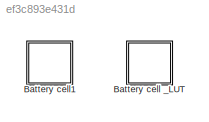
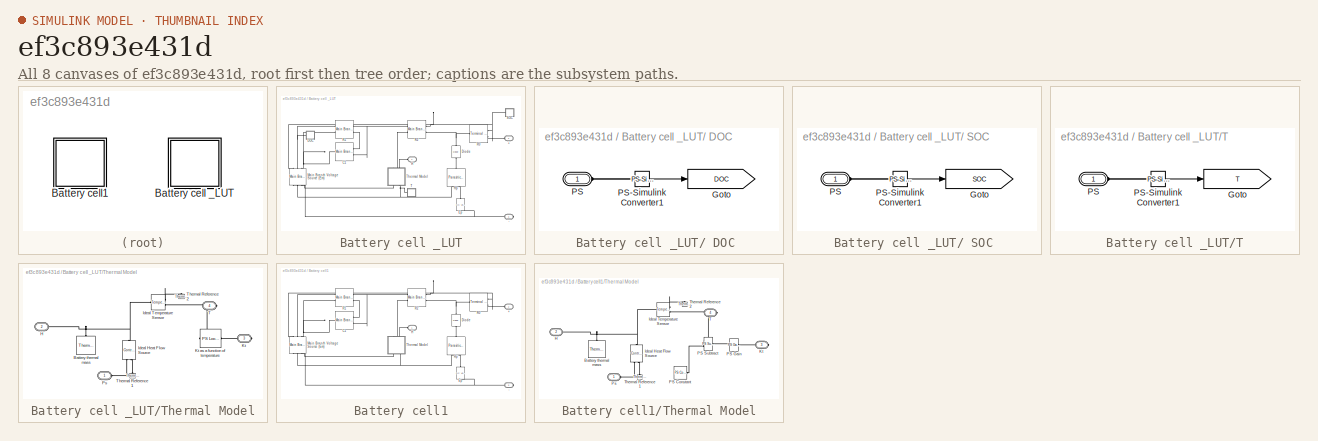
[diagram: thumbnail index - all 8 canvases of the model, root first then tree order]
MODEL slx_ef3c893e431d
KIND library
CONFIG AbsTol = auto
CONFIG EnableMultiTasking = on
CONFIG FixedStep = auto
CONFIG MaxStep = auto
CONFIG MinStep = auto
CONFIG RelTol = 1e-3
CONFIG SampleTimeConstraint = Unconstrained
CONFIG Solver = ode45
CONFIG SolverName = ode45
CONFIG StartTime = 0.0
CONFIG StopTime = 10.0
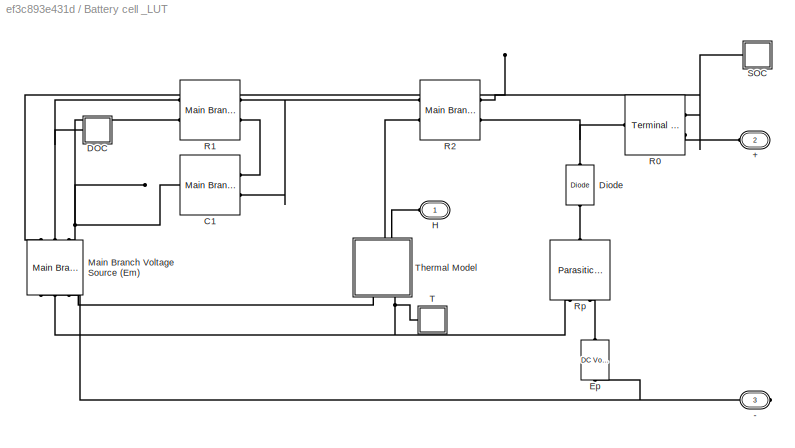
BLOCK [SubSystem] Battery cell _LUT
  NameLocation = right
  Ports = [0, 0, 0, 0, 0, 2, 1]
  RequestExecContextInheritance = off
BLOCK [SubSystem] Battery cell _LUT/ DOC 
  Ports = [0, 0, 0, 0, 0, 1]
  RequestExecContextInheritance = off
BLOCK [Goto] Battery cell _LUT/ DOC /Goto
  GotoTag = DOC
  TagVisibility = global
BLOCK [PMIOPort] Battery cell _LUT/ DOC /PS
  Side = Left
BLOCK [Reference] Battery cell _LUT/ DOC /PS-Simulink Converter1  REF=nesl_utility/PS-Simulink
Converter
  Ports = [0, 1, 0, 0, 0, 1]
  SourceBlock = nesl_utility/PS-Simulink\nConverter
  SourceProductBaseCode = SS
  SourceType = PS-Simulink\nConverter
BLOCK [SubSystem] Battery cell _LUT/ SOC 
  Ports = [0, 0, 0, 0, 0, 1]
  RequestExecContextInheritance = off
BLOCK [Goto] Battery cell _LUT/ SOC /Goto
  GotoTag = SOC
  TagVisibility = global
BLOCK [PMIOPort] Battery cell _LUT/ SOC /PS
  Side = Left
BLOCK [Reference] Battery cell _LUT/ SOC /PS-Simulink Converter1  REF=nesl_utility/PS-Simulink
Converter
  Ports = [0, 1, 0, 0, 0, 1]
  SourceBlock = nesl_utility/PS-Simulink\nConverter
  SourceProductBaseCode = SS
  SourceType = PS-Simulink\nConverter
BLOCK [PMIOPort] Battery cell _LUT/+
  Port = 2
  Side = Left
  Tag = PMCPort
BLOCK [PMIOPort] Battery cell _LUT/-
  Port = 3
  Side = Right
  Tag = PMCPort
BLOCK [Reference] Battery cell _LUT/C1  REF=LeadAcidBattery_lib/Main Branch
Capacitance, C1
  Ports = [0, 0, 0, 0, 0, 2, 1]
  SourceBlock = LeadAcidBattery_lib/Main Branch\nCapacitance, C1
  SourceProductBaseCode = SS
  SourceType = Main Branch\nCapacitance, C1
BLOCK [Reference] Battery cell _LUT/Diode  REF=fl_lib/Electrical/Electrical Elements/Diode
  NameLocation = left
  Ports = [0, 0, 0, 0, 0, 1, 1]
  SourceBlock = fl_lib/Electrical/Electrical Elements/Diode
  SourceProductBaseCode = SS
  SourceType = Diode
BLOCK [Reference] Battery cell _LUT/Ep  REF=fl_lib/Electrical/Electrical Sources/DC Voltage Source
  NameLocation = right
  Ports = [0, 0, 0, 0, 0, 1, 1]
  SourceBlock = fl_lib/Electrical/Electrical Sources/DC Voltage Source
  SourceProductBaseCode = SS
  SourceType = DC Voltage Source
BLOCK [PMIOPort] Battery cell _LUT/H
  Side = Left
  Tag = PMCPort
BLOCK [Reference] Battery cell _LUT/Main Branch Voltage Source (Em)  REF=LeadAcidBattery_lib/Main Branch Voltage
Source, Em
  NameLocation = right
  Ports = [0, 0, 0, 0, 0, 3, 3]
  SourceBlock = LeadAcidBattery_lib/Main Branch Voltage\nSource, Em
  SourceProductBaseCode = SS
  SourceType = Main Branch Voltage\nSource, Em
BLOCK [Reference] Battery cell _LUT/R0  REF=LeadAcidBattery_lib/Terminal Resistance,
R0
  Ports = [0, 0, 0, 0, 0, 2, 1]
  SourceBlock = LeadAcidBattery_lib/Terminal Resistance,\nR0
  SourceProductBaseCode = SS
  SourceType = Terminal Resistance,\nR0
BLOCK [Reference] Battery cell _LUT/R1  REF=LeadAcidBattery_lib/Main Branch
Resistance, R1
  Ports = [0, 0, 0, 0, 0, 2, 2]
  SourceBlock = LeadAcidBattery_lib/Main Branch\nResistance, R1
  SourceProductBaseCode = SS
  SourceType = Main Branch\nResistance, R1
BLOCK [Reference] Battery cell _LUT/R2  REF=LeadAcidBattery_lib/Main Branch
Resistance, R2
  Ports = [0, 0, 0, 0, 0, 2, 2]
  SourceBlock = LeadAcidBattery_lib/Main Branch\nResistance, R2
  SourceProductBaseCode = SS
  SourceType = Main Branch\nResistance, R2
BLOCK [Reference] Battery cell _LUT/Rp  REF=LeadAcidBattery_lib/Parasitic Branch
Resistance, Rp
  NameLocation = left
  Ports = [0, 0, 0, 0, 0, 1, 2]
  SourceBlock = LeadAcidBattery_lib/Parasitic Branch\nResistance, Rp
  SourceProductBaseCode = SS
  SourceType = Parasitic Branch\nResistance, Rp
BLOCK [SubSystem] Battery cell _LUT/T
  Ports = [0, 0, 0, 0, 0, 1]
  RequestExecContextInheritance = off
BLOCK [Goto] Battery cell _LUT/T/Goto
  GotoTag = T
  TagVisibility = global
BLOCK [PMIOPort] Battery cell _LUT/T/PS
  Side = Left
BLOCK [Reference] Battery cell _LUT/T/PS-Simulink Converter1  REF=nesl_utility/PS-Simulink
Converter
  Ports = [0, 1, 0, 0, 0, 1]
  SourceBlock = nesl_utility/PS-Simulink\nConverter
  SourceProductBaseCode = SS
  SourceType = PS-Simulink\nConverter
BLOCK [SubSystem] Battery cell _LUT/Thermal Model
  NameLocation = right
  Ports = [0, 0, 0, 0, 0, 2, 2]
  RequestExecContextInheritance = off
BLOCK [Reference] Battery cell _LUT/Thermal Model/Battery thermal mass  REF=fl_lib/Thermal/Thermal Elements/Thermal Mass
  NameLocation = left
  Ports = [0, 0, 0, 0, 0, 1]
  SourceBlock = fl_lib/Thermal/Thermal Elements/Thermal Mass
  SourceProductBaseCode = SS
  SourceType = Thermal Mass
BLOCK [PMIOPort] Battery cell _LUT/Thermal Model/H
  Port = 2
  Side = Left
  Tag = PMCPort
BLOCK [Reference] Battery cell _LUT/Thermal Model/Ideal Heat Flow Source  REF=fl_lib/Thermal/Thermal Sources/Controlled Heat Flow
Rate Source
  NameLocation = right
  Ports = [0, 0, 0, 0, 0, 1, 2]
  SourceBlock = fl_lib/Thermal/Thermal Sources/Controlled Heat Flow\nRate Source
  SourceProductBaseCode = SS
  SourceType = Controlled Heat Flow\nRate Source
BLOCK [Reference] Battery cell _LUT/Thermal Model/Ideal Temperature Sensor  REF=fl_lib/Thermal/Thermal Sensors/Temperature Sensor
  Ports = [0, 0, 0, 0, 0, 1, 2]
  SourceBlock = fl_lib/Thermal/Thermal Sensors/Temperature Sensor
  SourceProductBaseCode = SS
  SourceType = Temperature Sensor
BLOCK [PMIOPort] Battery cell _LUT/Thermal Model/Kt
  Port = 3
  Side = Right
  Tag = PMCPort
BLOCK [Reference] Battery cell _LUT/Thermal Model/Kt as a function of temperature  REF=fl_lib/Physical Signals/Lookup Tables/PS Lookup Table (1D)
  Ports = [0, 0, 0, 0, 0, 1, 1]
  SourceBlock = fl_lib/Physical Signals/Lookup Tables/PS Lookup Table (1D)
  SourceProductBaseCode = SS
  SourceType = PS Lookup Table (1D)
BLOCK [PMIOPort] Battery cell _LUT/Thermal Model/Ps
  Side = Left
  Tag = PMCPort
BLOCK [PMIOPort] Battery cell _LUT/Thermal Model/T
  Port = 4
  Side = Right
  Tag = PMCPort
BLOCK [Reference] Battery cell _LUT/Thermal Model/Thermal Reference1  REF=fl_lib/Thermal/Thermal Elements/Thermal Reference
  NameLocation = right
  Ports = [0, 0, 0, 0, 0, 1]
  SourceBlock = fl_lib/Thermal/Thermal Elements/Thermal Reference
  SourceProductBaseCode = SS
  SourceType = Thermal Reference
BLOCK [Reference] Battery cell _LUT/Thermal Model/Thermal Reference2  REF=fl_lib/Thermal/Thermal Elements/Thermal Reference
  NameLocation = right
  Ports = [0, 0, 0, 0, 0, 1]
  SourceBlock = fl_lib/Thermal/Thermal Elements/Thermal Reference
  SourceProductBaseCode = SS
  SourceType = Thermal Reference
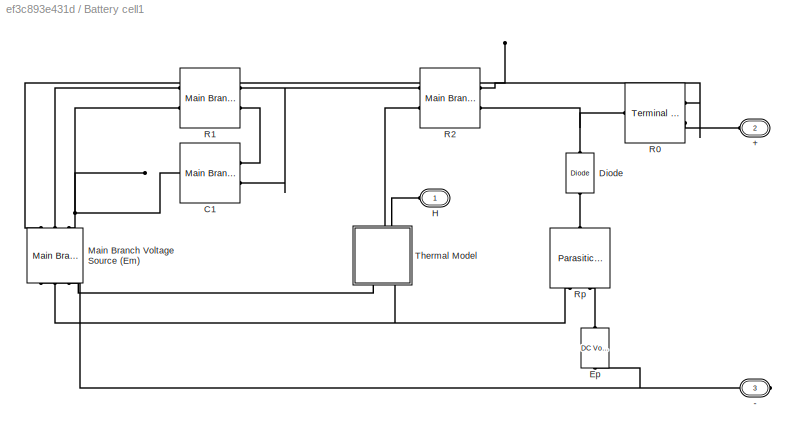
BLOCK [SubSystem] Battery cell1
  NameLocation = right
  Ports = [0, 0, 0, 0, 0, 2, 1]
  RequestExecContextInheritance = off
BLOCK [PMIOPort] Battery cell1/+
  Port = 2
  Side = Left
  Tag = PMCPort
BLOCK [PMIOPort] Battery cell1/-
  Port = 3
  Side = Right
  Tag = PMCPort
BLOCK [Reference] Battery cell1/C1  REF=LeadAcidBattery_lib/Main Branch
Capacitance, C1
  Ports = [0, 0, 0, 0, 0, 2, 1]
  SourceBlock = LeadAcidBattery_lib/Main Branch\nCapacitance, C1
  SourceProductBaseCode = SS
  SourceType = Main Branch\nCapacitance, C1
BLOCK [Reference] Battery cell1/Diode  REF=fl_lib/Electrical/Electrical Elements/Diode
  NameLocation = left
  Ports = [0, 0, 0, 0, 0, 1, 1]
  SourceBlock = fl_lib/Electrical/Electrical Elements/Diode
  SourceProductBaseCode = SS
  SourceType = Diode
BLOCK [Reference] Battery cell1/Ep  REF=fl_lib/Electrical/Electrical Sources/DC Voltage Source
  NameLocation = right
  Ports = [0, 0, 0, 0, 0, 1, 1]
  SourceBlock = fl_lib/Electrical/Electrical Sources/DC Voltage Source
  SourceProductBaseCode = SS
  SourceType = DC Voltage Source
BLOCK [PMIOPort] Battery cell1/H
  Side = Left
  Tag = PMCPort
BLOCK [Reference] Battery cell1/Main Branch Voltage Source (Em)  REF=LeadAcidBattery_lib/Main Branch Voltage
Source, Em
  NameLocation = right
  Ports = [0, 0, 0, 0, 0, 3, 3]
  SourceBlock = LeadAcidBattery_lib/Main Branch Voltage\nSource, Em
  SourceProductBaseCode = SS
  SourceType = Main Branch Voltage\nSource, Em
BLOCK [Reference] Battery cell1/R0  REF=LeadAcidBattery_lib/Terminal Resistance,
R0
  Ports = [0, 0, 0, 0, 0, 2, 1]
  SourceBlock = LeadAcidBattery_lib/Terminal Resistance,\nR0
  SourceProductBaseCode = SS
  SourceType = Terminal Resistance,\nR0
BLOCK [Reference] Battery cell1/R1  REF=LeadAcidBattery_lib/Main Branch
Resistance, R1
  Ports = [0, 0, 0, 0, 0, 2, 2]
  SourceBlock = LeadAcidBattery_lib/Main Branch\nResistance, R1
  SourceProductBaseCode = SS
  SourceType = Main Branch\nResistance, R1
BLOCK [Reference] Battery cell1/R2  REF=LeadAcidBattery_lib/Main Branch
Resistance, R2
  Ports = [0, 0, 0, 0, 0, 2, 2]
  SourceBlock = LeadAcidBattery_lib/Main Branch\nResistance, R2
  SourceProductBaseCode = SS
  SourceType = Main Branch\nResistance, R2
BLOCK [Reference] Battery cell1/Rp  REF=LeadAcidBattery_lib/Parasitic Branch
Resistance, Rp
  NameLocation = left
  Ports = [0, 0, 0, 0, 0, 1, 2]
  SourceBlock = LeadAcidBattery_lib/Parasitic Branch\nResistance, Rp
  SourceProductBaseCode = SS
  SourceType = Parasitic Branch\nResistance, Rp
BLOCK [SubSystem] Battery cell1/Thermal Model
  NameLocation = right
  Ports = [0, 0, 0, 0, 0, 2, 2]
  RequestExecContextInheritance = off
BLOCK [Reference] Battery cell1/Thermal Model/Battery thermal mass  REF=fl_lib/Thermal/Thermal Elements/Thermal Mass
  NameLocation = left
  Ports = [0, 0, 0, 0, 0, 1]
  SourceBlock = fl_lib/Thermal/Thermal Elements/Thermal Mass
  SourceProductBaseCode = SS
  SourceType = Thermal Mass
BLOCK [PMIOPort] Battery cell1/Thermal Model/H
  Port = 2
  Side = Left
  Tag = PMCPort
BLOCK [Reference] Battery cell1/Thermal Model/Ideal Heat Flow Source  REF=fl_lib/Thermal/Thermal Sources/Controlled Heat Flow
Rate Source
  NameLocation = right
  Ports = [0, 0, 0, 0, 0, 1, 2]
  SourceBlock = fl_lib/Thermal/Thermal Sources/Controlled Heat Flow\nRate Source
  SourceProductBaseCode = SS
  SourceType = Controlled Heat Flow\nRate Source
BLOCK [Reference] Battery cell1/Thermal Model/Ideal Temperature Sensor  REF=fl_lib/Thermal/Thermal Sensors/Temperature Sensor
  Ports = [0, 0, 0, 0, 0, 1, 2]
  SourceBlock = fl_lib/Thermal/Thermal Sensors/Temperature Sensor
  SourceProductBaseCode = SS
  SourceType = Temperature Sensor
BLOCK [PMIOPort] Battery cell1/Thermal Model/Kt
  Port = 3
  Side = Right
  Tag = PMCPort
BLOCK [Reference] Battery cell1/Thermal Model/PS Constant  REF=fl_lib/Physical Signals/Sources/PS Constant
  Ports = [0, 0, 0, 0, 0, 0, 1]
  SourceBlock = fl_lib/Physical Signals/Sources/PS Constant
  SourceProductBaseCode = SS
  SourceType = PS Constant
BLOCK [Reference] Battery cell1/Thermal Model/PS Gain  REF=fl_lib/Physical Signals/Functions/PS Gain
  Ports = [0, 0, 0, 0, 0, 1, 1]
  SourceBlock = fl_lib/Physical Signals/Functions/PS Gain
  SourceProductBaseCode = SS
  SourceType = PS Gain
BLOCK [Reference] Battery cell1/Thermal Model/PS Subtract  REF=fl_lib/Physical Signals/Functions/PS Subtract
  Ports = [0, 0, 0, 0, 0, 2, 1]
  SourceBlock = fl_lib/Physical Signals/Functions/PS Subtract
  SourceProductBaseCode = SS
  SourceType = PS Subtract
BLOCK [PMIOPort] Battery cell1/Thermal Model/Ps
  Side = Left
  Tag = PMCPort
BLOCK [PMIOPort] Battery cell1/Thermal Model/T
  Port = 4
  Side = Right
  Tag = PMCPort
BLOCK [Reference] Battery cell1/Thermal Model/Thermal Reference1  REF=fl_lib/Thermal/Thermal Elements/Thermal Reference
  NameLocation = right
  Ports = [0, 0, 0, 0, 0, 1]
  SourceBlock = fl_lib/Thermal/Thermal Elements/Thermal Reference
  SourceProductBaseCode = SS
  SourceType = Thermal Reference
BLOCK [Reference] Battery cell1/Thermal Model/Thermal Reference2  REF=fl_lib/Thermal/Thermal Elements/Thermal Reference
  NameLocation = right
  Ports = [0, 0, 0, 0, 0, 1]
  SourceBlock = fl_lib/Thermal/Thermal Elements/Thermal Reference
  SourceProductBaseCode = SS
  SourceType = Thermal Reference
LINE Battery cell _LUT/ DOC /PS-Simulink Converter1:1 -> Battery cell _LUT/ DOC /Goto:1
LINE Battery cell _LUT/ SOC /PS-Simulink Converter1:1 -> Battery cell _LUT/ SOC /Goto:1
LINE Battery cell _LUT/T/PS-Simulink Converter1:1 -> Battery cell _LUT/T/Goto:1
PLINE Battery cell _LUT/ DOC /PS-Simulink Converter1:LConn1 -- Battery cell _LUT/ DOC /PS:RConn1
PNET net1: Battery cell _LUT/ DOC :LConn1 -- Battery cell _LUT/Main Branch Voltage Source (Em):LConn2 -- Battery cell _LUT/R1:RConn1
PLINE Battery cell _LUT/ SOC /PS-Simulink Converter1:LConn1 -- Battery cell _LUT/ SOC /PS:RConn1
PNET net2: Battery cell _LUT/ SOC :LConn1 -- Battery cell _LUT/Main Branch Voltage Source (Em):LConn1 -- Battery cell _LUT/R0:LConn1 -- Battery cell _LUT/R2:LConn1
PLINE Battery cell _LUT/+:RConn1 -- Battery cell _LUT/R0:LConn2
PNET net3: Battery cell _LUT/-:RConn1 -- Battery cell _LUT/Ep:RConn1 -- Battery cell _LUT/Main Branch Voltage Source (Em):RConn1
PLINE Battery cell _LUT/C1:LConn1 -- Battery cell _LUT/R1:LConn2
PNET net4: Battery cell _LUT/C1:LConn2 -- Battery cell _LUT/R1:LConn1 -- Battery cell _LUT/R2:RConn1
PNET net5: Battery cell _LUT/C1:RConn1 -- Battery cell _LUT/Main Branch Voltage Source (Em):LConn3 -- Battery cell _LUT/R1:RConn2
PNET net6: Battery cell _LUT/Diode:LConn1 -- Battery cell _LUT/R0:RConn1 -- Battery cell _LUT/R2:LConn2
PLINE Battery cell _LUT/Diode:RConn1 -- Battery cell _LUT/Rp:LConn1
PLINE Battery cell _LUT/Ep:LConn1 -- Battery cell _LUT/Rp:RConn2
PLINE Battery cell _LUT/H:RConn1 -- Battery cell _LUT/Thermal Model:LConn2
PNET net7: Battery cell _LUT/Main Branch Voltage Source (Em):RConn2 -- Battery cell _LUT/Rp:RConn1 -- Battery cell _LUT/T:LConn1 -- Battery cell _LUT/Thermal Model:RConn2
PLINE Battery cell _LUT/Main Branch Voltage Source (Em):RConn3 -- Battery cell _LUT/Thermal Model:RConn1
PLINE Battery cell _LUT/R2:RConn2 -- Battery cell _LUT/Thermal Model:LConn1
PLINE Battery cell _LUT/T/PS-Simulink Converter1:LConn1 -- Battery cell _LUT/T/PS:RConn1
PNET net8: Battery cell _LUT/Thermal Model/Battery thermal mass:LConn1 -- Battery cell _LUT/Thermal Model/H:RConn1 -- Battery cell _LUT/Thermal Model/Ideal Heat Flow Source:LConn1 -- Battery cell _LUT/Thermal Model/Ideal Temperature Sensor:LConn1
PLINE Battery cell _LUT/Thermal Model/Ideal Heat Flow Source:RConn1 -- Battery cell _LUT/Thermal Model/Ps:RConn1
PLINE Battery cell _LUT/Thermal Model/Ideal Heat Flow Source:RConn2 -- Battery cell _LUT/Thermal Model/Thermal Reference1:LConn1
PLINE Battery cell _LUT/Thermal Model/Ideal Temperature Sensor:RConn1 -- Battery cell _LUT/Thermal Model/Thermal Reference2:LConn1
PNET net9: Battery cell _LUT/Thermal Model/Ideal Temperature Sensor:RConn2 -- Battery cell _LUT/Thermal Model/Kt as a function of temperature:LConn1 -- Battery cell _LUT/Thermal Model/T:RConn1
PLINE Battery cell _LUT/Thermal Model/Kt as a function of temperature:RConn1 -- Battery cell _LUT/Thermal Model/Kt:RConn1
PLINE Battery cell1/+:RConn1 -- Battery cell1/R0:LConn2
PNET net10: Battery cell1/-:RConn1 -- Battery cell1/Ep:RConn1 -- Battery cell1/Main Branch Voltage Source (Em):RConn1
PLINE Battery cell1/C1:LConn1 -- Battery cell1/R1:LConn2
PNET net11: Battery cell1/C1:LConn2 -- Battery cell1/R1:LConn1 -- Battery cell1/R2:RConn1
PNET net12: Battery cell1/C1:RConn1 -- Battery cell1/Main Branch Voltage Source (Em):LConn3 -- Battery cell1/R1:RConn2
PNET net13: Battery cell1/Diode:LConn1 -- Battery cell1/R0:RConn1 -- Battery cell1/R2:LConn2
PLINE Battery cell1/Diode:RConn1 -- Battery cell1/Rp:LConn1
PLINE Battery cell1/Ep:LConn1 -- Battery cell1/Rp:RConn2
PLINE Battery cell1/H:RConn1 -- Battery cell1/Thermal Model:LConn2
PNET net14: Battery cell1/Main Branch Voltage Source (Em):LConn1 -- Battery cell1/R0:LConn1 -- Battery cell1/R2:LConn1
PLINE Battery cell1/Main Branch Voltage Source (Em):LConn2 -- Battery cell1/R1:RConn1
PNET net15: Battery cell1/Main Branch Voltage Source (Em):RConn2 -- Battery cell1/Rp:RConn1 -- Battery cell1/Thermal Model:RConn2
PLINE Battery cell1/Main Branch Voltage Source (Em):RConn3 -- Battery cell1/Thermal Model:RConn1
PLINE Battery cell1/R2:RConn2 -- Battery cell1/Thermal Model:LConn1
PNET net16: Battery cell1/Thermal Model/Battery thermal mass:LConn1 -- Battery cell1/Thermal Model/H:RConn1 -- Battery cell1/Thermal Model/Ideal Heat Flow Source:LConn1 -- Battery cell1/Thermal Model/Ideal Temperature Sensor:LConn1
PLINE Battery cell1/Thermal Model/Ideal Heat Flow Source:RConn1 -- Battery cell1/Thermal Model/Ps:RConn1
PLINE Battery cell1/Thermal Model/Ideal Heat Flow Source:RConn2 -- Battery cell1/Thermal Model/Thermal Reference1:LConn1
PLINE Battery cell1/Thermal Model/Ideal Temperature Sensor:RConn1 -- Battery cell1/Thermal Model/Thermal Reference2:LConn1
PNET net17: Battery cell1/Thermal Model/Ideal Temperature Sensor:RConn2 -- Battery cell1/Thermal Model/PS Subtract:LConn1 -- Battery cell1/Thermal Model/T:RConn1
PLINE Battery cell1/Thermal Model/Kt:RConn1 -- Battery cell1/Thermal Model/PS Gain:RConn1
PLINE Battery cell1/Thermal Model/PS Constant:RConn1 -- Battery cell1/Thermal Model/PS Subtract:LConn2
PLINE Battery cell1/Thermal Model/PS Gain:LConn1 -- Battery cell1/Thermal Model/PS Subtract:RConn1
note: PNET lines group multi-terminal physical nets as a canonical sorted terminal list (undirected conserving connections); 2-terminal nets keep the pairwise PLINE form
